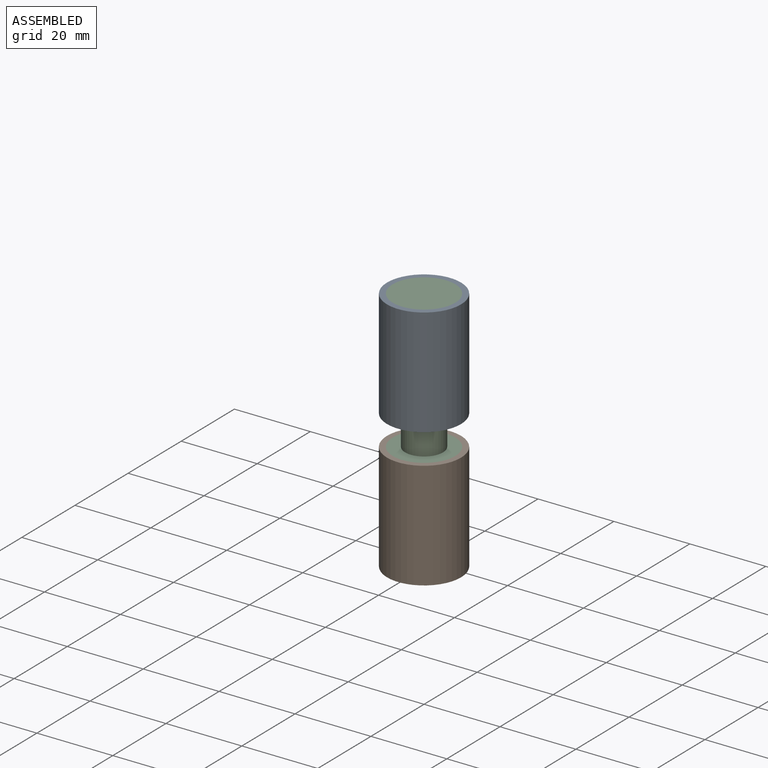
[diagram: assembled view]
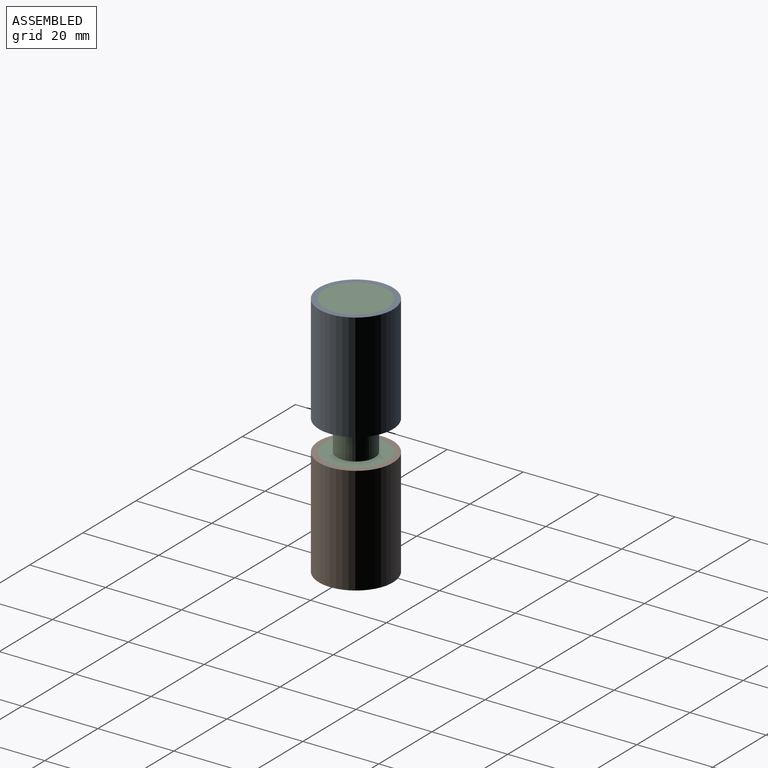
[diagram: assembled view, second angle]
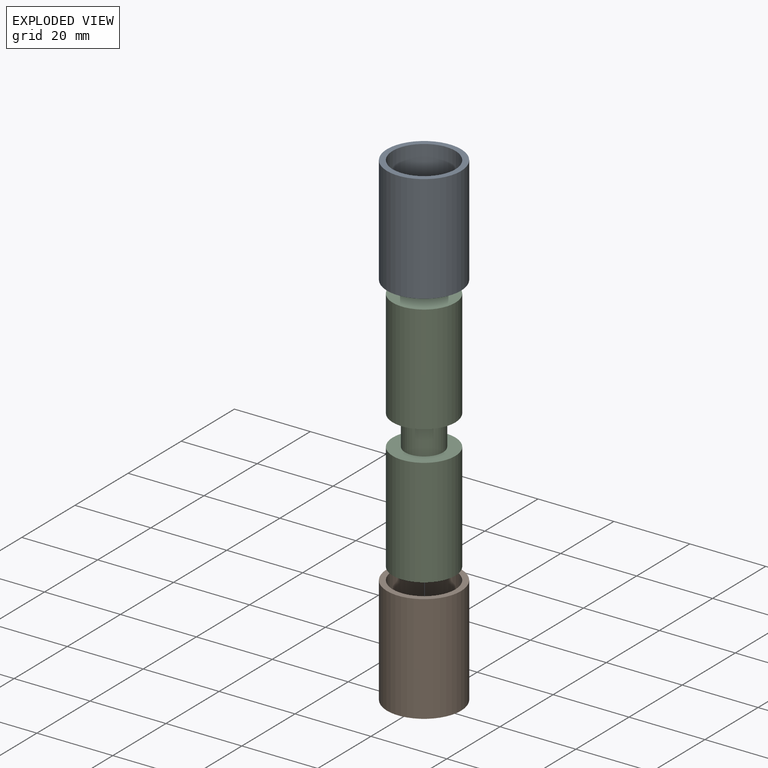
[diagram: exploded view]
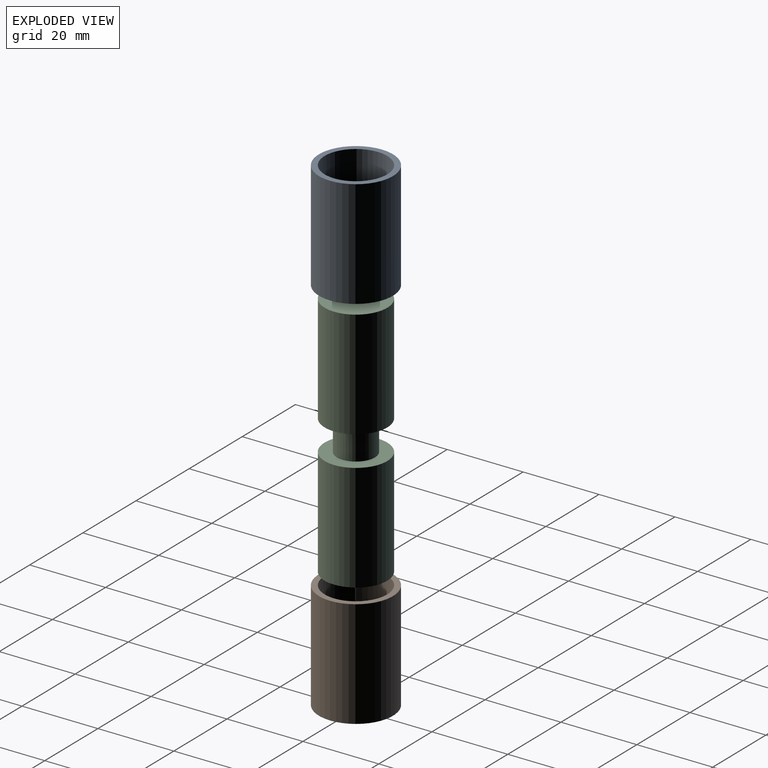
[diagram: exploded view, second angle]
ASSEMBLY  parts=3 mates=2
PART A: 4 faces, bbox 19.5x19.5x28.5 mm
  f0: cylinder r=9.75mm len=28.5mm, axis (0,0,1), area 1745.9mm2, adj f1,f3
  f1: plane 19.5x19.5mm, normal (0,0,1), area 84.8mm2, adj f0,f2
  f2: cylinder r=8.25mm len=28.5mm, axis (0,0,1), area 1477.3mm2, adj f1,f3
  f3: plane 19.5x19.5mm, normal (0,0,-1), area 84.8mm2, adj f0,f2
PART B: same geometry as A
PART C: 7 faces, bbox 16.5x16.5x65 mm
  f0: plane 16.5x16.5mm, normal (0,0,-1), area 135.3mm2, adj f1,f6
  f1: cylinder r=8.25mm len=28.5mm, axis (0,0,1), area 1477.3mm2, adj f0,f2
  f2: plane 16.5x16.5mm, normal (0,0,1), area 213.8mm2, adj f1
  f3: plane 16.5x16.5mm, normal (0,0,-1), area 213.8mm2, adj f4
  f4: cylinder r=8.25mm len=28.5mm, axis (0,0,1), area 1477.3mm2, adj f3,f5
  f5: plane 16.5x16.5mm, normal (0,0,1), area 135.3mm2, adj f4,f6
  f6: cylinder r=5mm len=10mm, axis (0,0,1), area 251.3mm2, adj f0,f5
PLACE A at identity
PLACE B t=(0,0,-36.5)mm
PLACE C at identity
MATE fastened A.f0 <-> C.f1  axis (0,0,1) through (0,0,32.5)mm
MATE fastened B.f0 <-> C.f1  axis (0,0,-1) through (0,0,-32.5)mm
